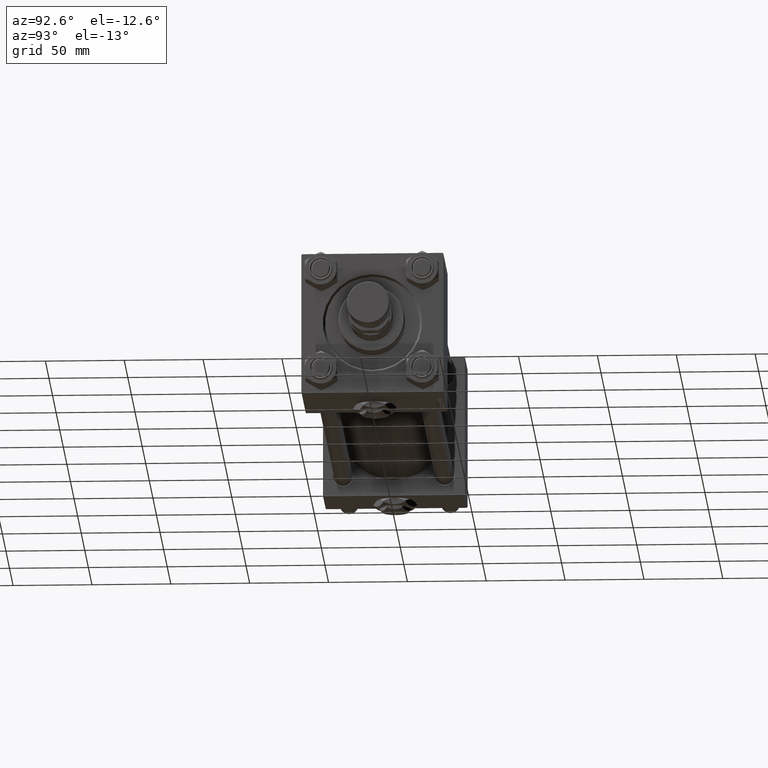
[diagram: clean part render]
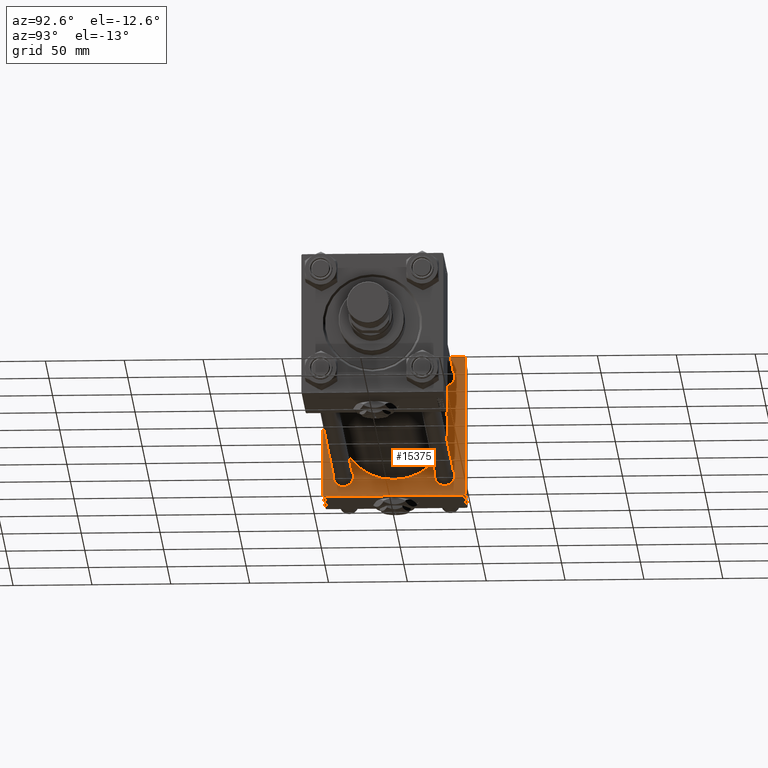
[diagram: same view with one face highlighted and labeled with its STEP entity id]
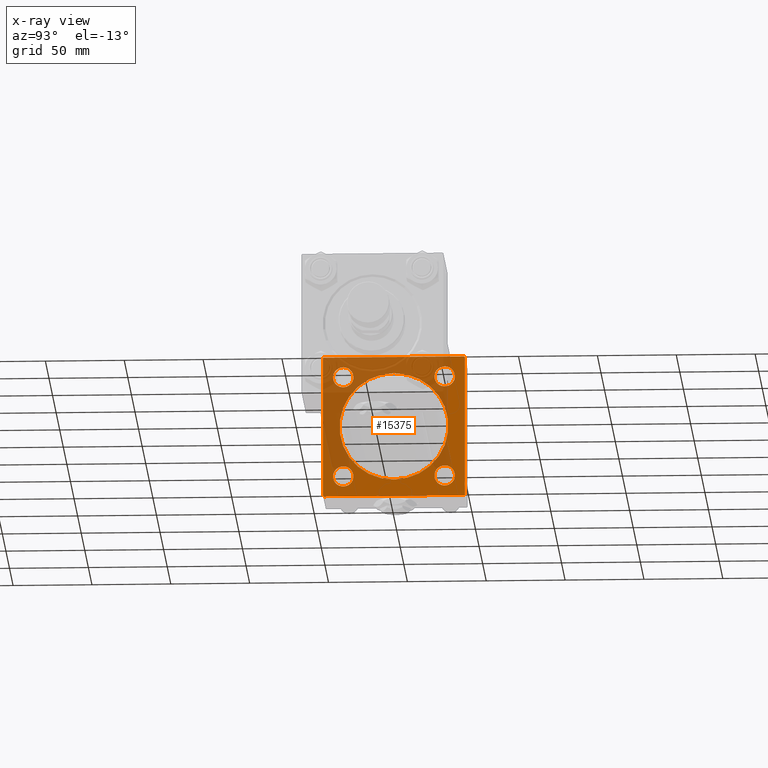
[diagram: x-ray of the same camera — body ghosted, the highlighted face saturated]
A machine part, auxiliary view. The second image highlights one B-rep face of the part: STEP entity #15375.
The next image is the same camera in x-ray: the body ghosted, the highlighted face saturated — about 49% of this face is hidden behind the body in this view.
In plain terms, the highlighted planar face has unit normal (-1, 0, 0).
Its self-contained STEP definition (entity closure, byte-faithful):
#440 = DIRECTION ( 'NONE',  ( 0.000000000000000000, -0.7071067811865474617, 0.7071067811865474617 ) ) ;
#570 = AXIS2_PLACEMENT_3D ( 'NONE', #12804, #28934, #48507 ) ;
#753 = VECTOR ( 'NONE', #34819, 1000.000000000000114 ) ;
#875 = PLANE ( 'NONE',  #5994 ) ;
#1288 = DIRECTION ( 'NONE',  ( 0.000000000000000000, 0.000000000000000000, -1.000000000000000000 ) ) ;
#1693 = DIRECTION ( 'NONE',  ( 0.000000000000000000, -1.000000000000000000, -1.541976423090495633E-16 ) ) ;
#1808 = CARTESIAN_POINT ( 'NONE',  ( 37.00000000000000000, 44.99999999999998579, 45.00000000000001421 ) ) ;
#1967 = VECTOR ( 'NONE', #1288, 1000.000000000000000 ) ;
#2267 = CARTESIAN_POINT ( 'NONE',  ( 37.00000000000000000, 44.49999999999998579, 45.00000000000001421 ) ) ;
#2440 = CARTESIAN_POINT ( 'NONE',  ( 37.00000000000000000, 44.99999999999998579, 44.50000000000001421 ) ) ;
#2493 = VERTEX_POINT ( 'NONE', #27217 ) ;
#2818 = CARTESIAN_POINT ( 'NONE',  ( 37.00000000000000000, 32.14999999999999147, -32.15000000000000568 ) ) ;
#2843 = CARTESIAN_POINT ( 'NONE',  ( 37.00000000000000000, 44.49999999999998579, 45.00000000000001421 ) ) ;
#3124 = EDGE_CURVE ( 'NONE', #36129, #39547, #6131, .T. ) ;
#3306 = CARTESIAN_POINT ( 'NONE',  ( 37.00000000000000000, 32.14999999999999147, 32.15000000000000568 ) ) ;
#3631 = EDGE_CURVE ( 'NONE', #38507, #32737, #36982, .T. ) ;
#3824 = DIRECTION ( 'NONE',  ( 0.000000000000000000, 0.000000000000000000, 1.000000000000000000 ) ) ;
#4174 = DIRECTION ( 'NONE',  ( 0.000000000000000000, 0.7071067811865474617, -0.7071067811865474617 ) ) ;
#4345 = EDGE_LOOP ( 'NONE', ( #24988, #43155 ) ) ;
#5529 = CARTESIAN_POINT ( 'NONE',  ( 37.00000000000000000, 32.14999999999999147, 25.65000000000002700 ) ) ;
#5914 = CARTESIAN_POINT ( 'NONE',  ( 37.00000000000000000, 44.99999999999998579, -44.99999999999998579 ) ) ;
#5994 = AXIS2_PLACEMENT_3D ( 'NONE', #8558, #16247, #40570 ) ;
#6131 = LINE ( 'NONE', #42900, #10769 ) ;
#6204 = VERTEX_POINT ( 'NONE', #2440 ) ;
#6279 = ORIENTED_EDGE ( 'NONE', *, *, #50788, .F. ) ;
#6583 = ORIENTED_EDGE ( 'NONE', *, *, #23296, .T. ) ;
#6849 = CARTESIAN_POINT ( 'NONE',  ( 37.00000000000000000, 44.99999999999998579, -44.49999999999995737 ) ) ;
#6940 = VECTOR ( 'NONE', #440, 1000.000000000000114 ) ;
#7110 = EDGE_LOOP ( 'NONE', ( #6583, #26794 ) ) ;
#7381 = CARTESIAN_POINT ( 'NONE',  ( 37.00000000000000000, -45.00000000000000711, 45.00000000000000000 ) ) ;
#7495 = DIRECTION ( 'NONE',  ( 0.000000000000000000, 0.000000000000000000, 1.000000000000000000 ) ) ;
#7620 = CARTESIAN_POINT ( 'NONE',  ( 37.00000000000000000, 32.14999999999999147, 38.64999999999998437 ) ) ;
#8558 = CARTESIAN_POINT ( 'NONE',  ( 37.00000000000000000, 0.000000000000000000, 0.000000000000000000 ) ) ;
#8824 = FACE_OUTER_BOUND ( 'NONE', #32837, .T. ) ;
#8947 = CARTESIAN_POINT ( 'NONE',  ( 37.00000000000000000, -44.49999999999998579, -45.00000000000000000 ) ) ;
#9464 = CARTESIAN_POINT ( 'NONE',  ( 37.00000000000000000, -44.49999999999995737, -45.00000000000000000 ) ) ;
#9798 = ORIENTED_EDGE ( 'NONE', *, *, #3631, .T. ) ;
#10195 = DIRECTION ( 'NONE',  ( 1.000000000000000000, -0.000000000000000000, 0.000000000000000000 ) ) ;
#10769 = VECTOR ( 'NONE', #18581, 1000.000000000000000 ) ;
#10834 = DIRECTION ( 'NONE',  ( 0.000000000000000000, 7.709882115452476934E-17, -1.000000000000000000 ) ) ;
#10983 = EDGE_LOOP ( 'NONE', ( #35368, #27699 ) ) ;
#11203 = CARTESIAN_POINT ( 'NONE',  ( 37.00000000000000000, -45.00000000000000711, 44.49999999999997158 ) ) ;
#11207 = CIRCLE ( 'NONE', #35697, 6.499999999999977796 ) ;
#11334 = CARTESIAN_POINT ( 'NONE',  ( 37.00000000000000711, 4.225031457058367344E-15, -34.49999999999999289 ) ) ;
#11410 = DIRECTION ( 'NONE',  ( 0.000000000000000000, 0.000000000000000000, 1.000000000000000000 ) ) ;
#11525 = DIRECTION ( 'NONE',  ( -1.000000000000000000, 0.000000000000000000, -0.000000000000000000 ) ) ;
#12804 = CARTESIAN_POINT ( 'NONE',  ( 37.00000000000000000, -32.14999999999997726, 32.15000000000001279 ) ) ;
#13264 = VERTEX_POINT ( 'NONE', #18730 ) ;
#13419 = VECTOR ( 'NONE', #1693, 1000.000000000000000 ) ;
#13458 = CIRCLE ( 'NONE', #17702, 6.499999999999977796 ) ;
#14153 = CARTESIAN_POINT ( 'NONE',  ( 37.00000000000000711, 0.000000000000000000, 0.000000000000000000 ) ) ;
#14505 = AXIS2_PLACEMENT_3D ( 'NONE', #49873, #37719, #21845 ) ;
#14568 = CARTESIAN_POINT ( 'NONE',  ( 37.00000000000000000, -44.49999999999995737, 45.00000000000000000 ) ) ;
#15229 = AXIS2_PLACEMENT_3D ( 'NONE', #2818, #23198, #43564 ) ;
#15315 = CARTESIAN_POINT ( 'NONE',  ( 37.00000000000000000, 32.14999999999999147, -32.15000000000000568 ) ) ;
#15375 = ADVANCED_FACE ( 'NONE', ( #37124, #36343, #41089, #33151, #36078, #8824 ), #875, .F. ) ;
#15556 = AXIS2_PLACEMENT_3D ( 'NONE', #3306, #11525, #3824 ) ;
#16247 = DIRECTION ( 'NONE',  ( -1.000000000000000000, 0.000000000000000000, -0.000000000000000000 ) ) ;
#16265 = CIRCLE ( 'NONE', #30588, 6.499999999999977796 ) ;
#16821 = EDGE_CURVE ( 'NONE', #6204, #36129, #22960, .T. ) ;
#17176 = ORIENTED_EDGE ( 'NONE', *, *, #21252, .T. ) ;
#17213 = CARTESIAN_POINT ( 'NONE',  ( 37.00000000000000000, -32.14999999999997726, -38.64999999999999147 ) ) ;
#17475 = CIRCLE ( 'NONE', #570, 6.499999999999977796 ) ;
#17702 = AXIS2_PLACEMENT_3D ( 'NONE', #48603, #32719, #20319 ) ;
#17952 = EDGE_LOOP ( 'NONE', ( #39359, #27274 ) ) ;
#18242 = CARTESIAN_POINT ( 'NONE',  ( 37.00000000000000000, 44.49999999999998579, -44.99999999999998579 ) ) ;
#18429 = CARTESIAN_POINT ( 'NONE',  ( 37.00000000000000000, 44.99999999999998579, -44.49999999999998579 ) ) ;
#18581 = DIRECTION ( 'NONE',  ( 0.000000000000000000, -1.000000000000000000, -1.541976423090495387E-16 ) ) ;
#18624 = LINE ( 'NONE', #5914, #13419 ) ;
#18730 = CARTESIAN_POINT ( 'NONE',  ( 37.00000000000000000, -45.00000000000000711, 44.49999999999997158 ) ) ;
#18805 = EDGE_CURVE ( 'NONE', #13264, #38507, #34909, .T. ) ;
#19294 = DIRECTION ( 'NONE',  ( -1.000000000000000000, 0.000000000000000000, -0.000000000000000000 ) ) ;
#19539 = EDGE_CURVE ( 'NONE', #39514, #23481, #17475, .T. ) ;
#19856 = ORIENTED_EDGE ( 'NONE', *, *, #23763, .F. ) ;
#20319 = DIRECTION ( 'NONE',  ( 0.000000000000000000, 0.000000000000000000, 1.000000000000000000 ) ) ;
#21252 = EDGE_CURVE ( 'NONE', #39547, #13264, #32323, .T. ) ;
#21542 = ORIENTED_EDGE ( 'NONE', *, *, #18805, .T. ) ;
#21845 = DIRECTION ( 'NONE',  ( 0.000000000000000000, 0.000000000000000000, 1.000000000000000000 ) ) ;
#22686 = VERTEX_POINT ( 'NONE', #11334 ) ;
#22960 = LINE ( 'NONE', #2843, #6940 ) ;
#23198 = DIRECTION ( 'NONE',  ( -1.000000000000000000, 0.000000000000000000, -0.000000000000000000 ) ) ;
#23254 = DIRECTION ( 'NONE',  ( 0.000000000000000000, 0.000000000000000000, 1.000000000000000000 ) ) ;
#23296 = EDGE_CURVE ( 'NONE', #36656, #45496, #26028, .T. ) ;
#23481 = VERTEX_POINT ( 'NONE', #49445 ) ;
#23640 = DIRECTION ( 'NONE',  ( -1.000000000000000000, 0.000000000000000000, -0.000000000000000000 ) ) ;
#23763 = EDGE_CURVE ( 'NONE', #25446, #32737, #18624, .T. ) ;
#23844 = CARTESIAN_POINT ( 'NONE',  ( 37.00000000000000000, -32.14999999999997726, -25.65000000000003411 ) ) ;
#24291 = VECTOR ( 'NONE', #31804, 1000.000000000000114 ) ;
#24512 = ORIENTED_EDGE ( 'NONE', *, *, #24692, .T. ) ;
#24692 = EDGE_CURVE ( 'NONE', #29820, #46235, #13458, .T. ) ;
#24941 = EDGE_CURVE ( 'NONE', #25446, #26539, #46977, .T. ) ;
#24988 = ORIENTED_EDGE ( 'NONE', *, *, #43736, .T. ) ;
#25238 = AXIS2_PLACEMENT_3D ( 'NONE', #28316, #31755, #11410 ) ;
#25446 = VERTEX_POINT ( 'NONE', #18242 ) ;
#26028 = CIRCLE ( 'NONE', #25238, 6.499999999999977796 ) ;
#26539 = VERTEX_POINT ( 'NONE', #6849 ) ;
#26794 = ORIENTED_EDGE ( 'NONE', *, *, #43746, .T. ) ;
#27191 = CIRCLE ( 'NONE', #39014, 34.49999999999999289 ) ;
#27217 = CARTESIAN_POINT ( 'NONE',  ( 37.00000000000000711, 0.000000000000000000, 34.49999999999999289 ) ) ;
#27274 = ORIENTED_EDGE ( 'NONE', *, *, #47994, .T. ) ;
#27699 = ORIENTED_EDGE ( 'NONE', *, *, #33988, .F. ) ;
#28316 = CARTESIAN_POINT ( 'NONE',  ( 37.00000000000000000, 32.14999999999999147, 32.15000000000000568 ) ) ;
#28934 = DIRECTION ( 'NONE',  ( -1.000000000000000000, 0.000000000000000000, -0.000000000000000000 ) ) ;
#29820 = VERTEX_POINT ( 'NONE', #17213 ) ;
#30428 = CARTESIAN_POINT ( 'NONE',  ( 37.00000000000000000, -32.14999999999997726, 38.64999999999999147 ) ) ;
#30588 = AXIS2_PLACEMENT_3D ( 'NONE', #52185, #23640, #7495 ) ;
#30972 = EDGE_CURVE ( 'NONE', #43099, #34684, #31252, .T. ) ;
#31252 = CIRCLE ( 'NONE', #15229, 6.499999999999977796 ) ;
#31435 = ORIENTED_EDGE ( 'NONE', *, *, #3124, .T. ) ;
#31587 = CIRCLE ( 'NONE', #15556, 6.499999999999977796 ) ;
#31654 = CARTESIAN_POINT ( 'NONE',  ( 37.00000000000000000, 32.14999999999999147, -25.65000000000002700 ) ) ;
#31755 = DIRECTION ( 'NONE',  ( -1.000000000000000000, 0.000000000000000000, -0.000000000000000000 ) ) ;
#31804 = DIRECTION ( 'NONE',  ( -0.000000000000000000, -0.7071067811865425767, -0.7071067811865524577 ) ) ;
#32323 = LINE ( 'NONE', #11203, #24291 ) ;
#32719 = DIRECTION ( 'NONE',  ( -1.000000000000000000, 0.000000000000000000, -0.000000000000000000 ) ) ;
#32737 = VERTEX_POINT ( 'NONE', #9464 ) ;
#32837 = EDGE_LOOP ( 'NONE', ( #19856, #41587, #6279, #38121, #31435, #17176, #21542, #9798 ) ) ;
#33151 = FACE_BOUND ( 'NONE', #7110, .T. ) ;
#33988 = EDGE_CURVE ( 'NONE', #22686, #2493, #27191, .T. ) ;
#34015 = EDGE_CURVE ( 'NONE', #2493, #22686, #37314, .T. ) ;
#34684 = VERTEX_POINT ( 'NONE', #31654 ) ;
#34725 = CARTESIAN_POINT ( 'NONE',  ( 37.00000000000000000, -45.00000000000000000, -44.49999999999995737 ) ) ;
#34819 = DIRECTION ( 'NONE',  ( -0.000000000000000000, 0.7071067811865474617, 0.7071067811865474617 ) ) ;
#34909 = LINE ( 'NONE', #7381, #43313 ) ;
#35368 = ORIENTED_EDGE ( 'NONE', *, *, #34015, .F. ) ;
#35697 = AXIS2_PLACEMENT_3D ( 'NONE', #15315, #19294, #23254 ) ;
#35829 = AXIS2_PLACEMENT_3D ( 'NONE', #51457, #39571, #47750 ) ;
#36078 = FACE_BOUND ( 'NONE', #10983, .T. ) ;
#36129 = VERTEX_POINT ( 'NONE', #2267 ) ;
#36343 = FACE_BOUND ( 'NONE', #17952, .T. ) ;
#36656 = VERTEX_POINT ( 'NONE', #5529 ) ;
#36982 = LINE ( 'NONE', #8947, #48820 ) ;
#37124 = FACE_BOUND ( 'NONE', #37362, .T. ) ;
#37314 = CIRCLE ( 'NONE', #14505, 34.49999999999999289 ) ;
#37362 = EDGE_LOOP ( 'NONE', ( #24512, #42866 ) ) ;
#37719 = DIRECTION ( 'NONE',  ( 1.000000000000000000, -0.000000000000000000, 0.000000000000000000 ) ) ;
#38121 = ORIENTED_EDGE ( 'NONE', *, *, #16821, .T. ) ;
#38239 = DIRECTION ( 'NONE',  ( 0.000000000000000000, 0.000000000000000000, 1.000000000000000000 ) ) ;
#38507 = VERTEX_POINT ( 'NONE', #34725 ) ;
#39014 = AXIS2_PLACEMENT_3D ( 'NONE', #14153, #10195, #38239 ) ;
#39359 = ORIENTED_EDGE ( 'NONE', *, *, #30972, .T. ) ;
#39514 = VERTEX_POINT ( 'NONE', #30428 ) ;
#39547 = VERTEX_POINT ( 'NONE', #14568 ) ;
#39571 = DIRECTION ( 'NONE',  ( -1.000000000000000000, 0.000000000000000000, -0.000000000000000000 ) ) ;
#40290 = CARTESIAN_POINT ( 'NONE',  ( 37.00000000000000000, 32.14999999999999147, -38.64999999999998437 ) ) ;
#40570 = DIRECTION ( 'NONE',  ( -0.000000000000000000, 0.000000000000000000, 1.000000000000000000 ) ) ;
#41089 = FACE_BOUND ( 'NONE', #4345, .T. ) ;
#41503 = LINE ( 'NONE', #1808, #1967 ) ;
#41587 = ORIENTED_EDGE ( 'NONE', *, *, #24941, .T. ) ;
#42866 = ORIENTED_EDGE ( 'NONE', *, *, #47324, .T. ) ;
#42900 = CARTESIAN_POINT ( 'NONE',  ( 37.00000000000000000, 44.99999999999998579, 45.00000000000001421 ) ) ;
#43099 = VERTEX_POINT ( 'NONE', #40290 ) ;
#43155 = ORIENTED_EDGE ( 'NONE', *, *, #19539, .T. ) ;
#43313 = VECTOR ( 'NONE', #10834, 1000.000000000000000 ) ;
#43564 = DIRECTION ( 'NONE',  ( 0.000000000000000000, 0.000000000000000000, 1.000000000000000000 ) ) ;
#43736 = EDGE_CURVE ( 'NONE', #23481, #39514, #48509, .T. ) ;
#43746 = EDGE_CURVE ( 'NONE', #45496, #36656, #31587, .T. ) ;
#45496 = VERTEX_POINT ( 'NONE', #7620 ) ;
#46235 = VERTEX_POINT ( 'NONE', #23844 ) ;
#46977 = LINE ( 'NONE', #18429, #753 ) ;
#47324 = EDGE_CURVE ( 'NONE', #46235, #29820, #16265, .T. ) ;
#47750 = DIRECTION ( 'NONE',  ( 0.000000000000000000, 0.000000000000000000, 1.000000000000000000 ) ) ;
#47994 = EDGE_CURVE ( 'NONE', #34684, #43099, #11207, .T. ) ;
#48507 = DIRECTION ( 'NONE',  ( 0.000000000000000000, 0.000000000000000000, 1.000000000000000000 ) ) ;
#48509 = CIRCLE ( 'NONE', #35829, 6.499999999999977796 ) ;
#48603 = CARTESIAN_POINT ( 'NONE',  ( 37.00000000000000000, -32.14999999999997726, -32.15000000000001279 ) ) ;
#48820 = VECTOR ( 'NONE', #4174, 1000.000000000000114 ) ;
#49445 = CARTESIAN_POINT ( 'NONE',  ( 37.00000000000000000, -32.14999999999997726, 25.65000000000003411 ) ) ;
#49873 = CARTESIAN_POINT ( 'NONE',  ( 37.00000000000000711, 0.000000000000000000, 0.000000000000000000 ) ) ;
#50788 = EDGE_CURVE ( 'NONE', #6204, #26539, #41503, .T. ) ;
#51457 = CARTESIAN_POINT ( 'NONE',  ( 37.00000000000000000, -32.14999999999997726, 32.15000000000001279 ) ) ;
#52185 = CARTESIAN_POINT ( 'NONE',  ( 37.00000000000000000, -32.14999999999997726, -32.15000000000001279 ) ) ;